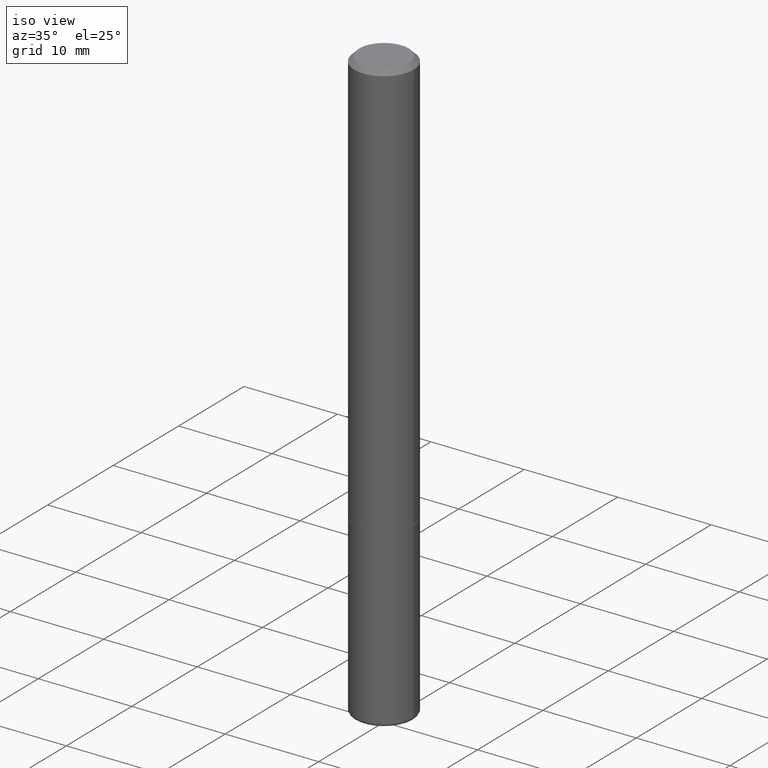
[diagram: clean part render]
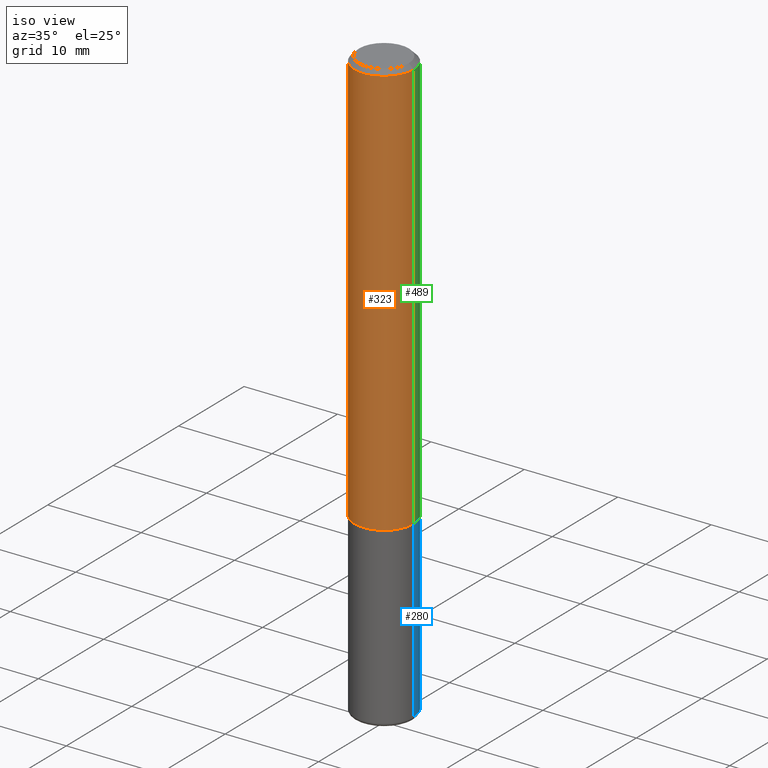
[diagram: same view with three faces highlighted in distinct colors, each labeled with its STEP entity id]
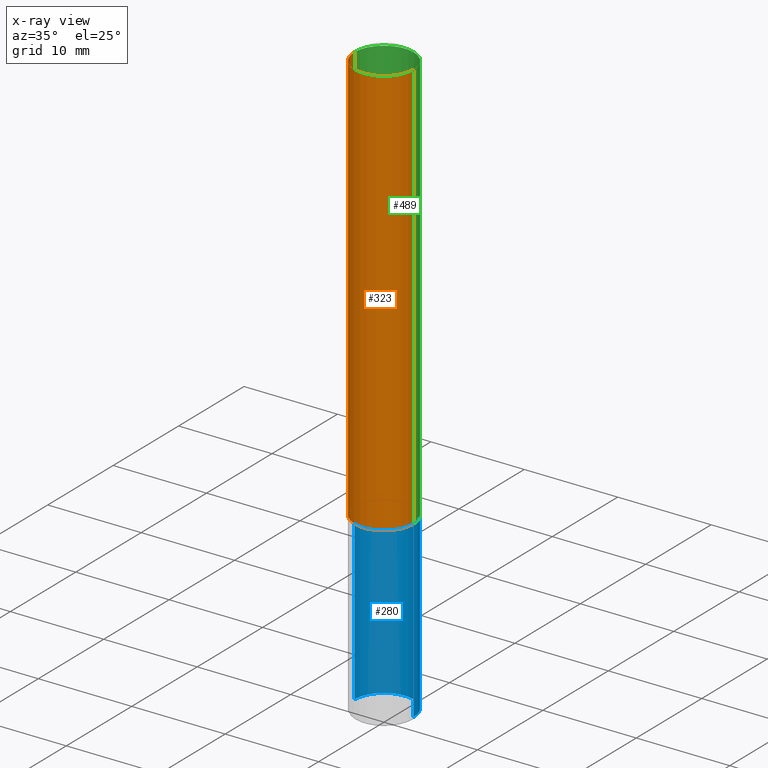
[diagram: x-ray of the same camera — body ghosted, the three highlighted faces saturated]
A machine part, iso view with three faces highlighted in distinct colors.
The next image is the same camera in x-ray (body ghosted, the three faces saturated) — at least one of them is partly hidden behind the body in this view.
Their STEP definitions:

[orange] entity #323 — the highlighted cylindrical surface (edge-blend (fillet) strip) has radius 3.175 mm, axis along (-0, 0, 1).
#10 = EDGE_CURVE ( 'NONE', #449, #472, #115, .T. ) ;
#23 = DIRECTION ( 'NONE',  ( -2.445468806185136597E-29, 3.491481338843145583E-15, 1.000000000000000000 ) ) ;
#29 = CARTESIAN_POINT ( 'NONE',  ( 0.1249999999999996947, -8.728703347107811695E-16, 6.095220969744905027E-30 ) ) ;
#31 = ORIENTED_EDGE ( 'NONE', *, *, #335, .F. ) ;
#39 = VERTEX_POINT ( 'NONE', #212 ) ;
#58 = CIRCLE ( 'NONE', #448, 0.1250000000000000278 ) ;
#72 = DIRECTION ( 'NONE',  ( 1.000000000000000000, -6.982962677686265922E-15, 0.000000000000000000 ) ) ;
#88 = CARTESIAN_POINT ( 'NONE',  ( 0.1249999999999993477, -9.273918764983002075E-16, -0.02000000000000009062 ) ) ;
#113 = CARTESIAN_POINT ( 'NONE',  ( 4.277124942017804562E-29, -6.106600861636661664E-15, -1.749000000000000110 ) ) ;
#114 = CARTESIAN_POINT ( 'NONE',  ( -0.1249999999999996947, 8.881784197001230630E-16, -6.148668862818616813E-30 ) ) ;
#115 = CIRCLE ( 'NONE', #125, 0.1249999999999993477 ) ;
#125 = AXIS2_PLACEMENT_3D ( 'NONE', #259, #23, #72 ) ;
#183 = VERTEX_POINT ( 'NONE', #380 ) ;
#204 = VECTOR ( 'NONE', #447, 39.37007874015748143 ) ;
#212 = CARTESIAN_POINT ( 'NONE',  ( 0.1250000000000000278, -6.979471196347445792E-15, -1.749000000000000110 ) ) ;
#225 = DIRECTION ( 'NONE',  ( 1.000000000000000000, -6.982962677686266711E-15, 4.876176775795935793E-29 ) ) ;
#243 = EDGE_CURVE ( 'NONE', #39, #472, #490, .T. ) ;
#259 = CARTESIAN_POINT ( 'NONE',  ( 4.890937612370295054E-31, -6.982962677686322424E-17, -0.02000000000000009062 ) ) ;
#261 = CYLINDRICAL_SURFACE ( 'NONE', #344, 0.1249999999999996947 ) ;
#271 = DIRECTION ( 'NONE',  ( 1.000000000000000000, -6.982962677686269077E-15, 0.000000000000000000 ) ) ;
#292 = LINE ( 'NONE', #114, #204 ) ;
#299 = CARTESIAN_POINT ( 'NONE',  ( 0.000000000000000000, 0.000000000000000000, 0.000000000000000000 ) ) ;
#303 = DIRECTION ( 'NONE',  ( -2.445468806185136597E-29, 3.491481338843145583E-15, 1.000000000000000000 ) ) ;
#313 = ORIENTED_EDGE ( 'NONE', *, *, #320, .T. ) ;
#320 = EDGE_CURVE ( 'NONE', #183, #39, #58, .T. ) ;
#323 = ADVANCED_FACE ( 'NONE', ( #451 ), #261, .T. ) ;
#335 = EDGE_CURVE ( 'NONE', #183, #449, #292, .T. ) ;
#336 = CARTESIAN_POINT ( 'NONE',  ( -0.1249999999999993477, 8.030407079339155047E-16, -0.02000000000000009062 ) ) ;
#344 = AXIS2_PLACEMENT_3D ( 'NONE', #299, #445, #225 ) ;
#349 = EDGE_LOOP ( 'NONE', ( #31, #313, #441, #375 ) ) ;
#355 = DIRECTION ( 'NONE',  ( -2.445468806185136877E-29, 3.491481338843145188E-15, 1.000000000000000000 ) ) ;
#375 = ORIENTED_EDGE ( 'NONE', *, *, #10, .F. ) ;
#380 = CARTESIAN_POINT ( 'NONE',  ( -0.1250000000000000278, -2.200036824506628966E-15, -1.749000000000000110 ) ) ;
#430 = VECTOR ( 'NONE', #355, 39.37007874015748143 ) ;
#441 = ORIENTED_EDGE ( 'NONE', *, *, #243, .T. ) ;
#445 = DIRECTION ( 'NONE',  ( -2.445468806185136597E-29, 3.491481338843145583E-15, 1.000000000000000000 ) ) ;
#447 = DIRECTION ( 'NONE',  ( -2.445468806185136877E-29, 3.491481338843145188E-15, 1.000000000000000000 ) ) ;
#448 = AXIS2_PLACEMENT_3D ( 'NONE', #113, #303, #271 ) ;
#449 = VERTEX_POINT ( 'NONE', #336 ) ;
#451 = FACE_OUTER_BOUND ( 'NONE', #349, .T. ) ;
#472 = VERTEX_POINT ( 'NONE', #88 ) ;
#490 = LINE ( 'NONE', #29, #430 ) ;

[blue] entity #280 — the highlighted cylindrical surface (edge-blend (fillet) strip) has radius 3.175 mm, axis along (-0, 0, 1).
#9 = DIRECTION ( 'NONE',  ( -2.445468806185136597E-29, 3.491481338843145583E-15, 1.000000000000000000 ) ) ;
#17 = ORIENTED_EDGE ( 'NONE', *, *, #77, .F. ) ;
#28 = EDGE_CURVE ( 'NONE', #362, #473, #394, .T. ) ;
#30 = DIRECTION ( 'NONE',  ( 1.000000000000000000, -6.982962677686269077E-15, 0.000000000000000000 ) ) ;
#63 = EDGE_CURVE ( 'NONE', #473, #440, #180, .T. ) ;
#77 = EDGE_CURVE ( 'NONE', #420, #440, #134, .T. ) ;
#83 = EDGE_CURVE ( 'NONE', #362, #420, #471, .T. ) ;
#101 = AXIS2_PLACEMENT_3D ( 'NONE', #480, #297, #154 ) ;
#108 = CARTESIAN_POINT ( 'NONE',  ( 6.076991380109446545E-29, -8.676333121198880578E-15, -2.485000571154037718 ) ) ;
#129 = CARTESIAN_POINT ( 'NONE',  ( 0.1250000000000000278, -6.982962677686288799E-15, -1.750000000000000222 ) ) ;
#134 = CIRCLE ( 'NONE', #287, 0.1250000000000000278 ) ;
#150 = ORIENTED_EDGE ( 'NONE', *, *, #28, .T. ) ;
#154 = DIRECTION ( 'NONE',  ( 1.000000000000000000, -6.982962677686267499E-15, 4.876176775795935793E-29 ) ) ;
#168 = ORIENTED_EDGE ( 'NONE', *, *, #83, .F. ) ;
#174 = CARTESIAN_POINT ( 'NONE',  ( 0.1250000000000000278, -8.728703347107836346E-16, 6.095220969744921142E-30 ) ) ;
#180 = LINE ( 'NONE', #391, #265 ) ;
#194 = CYLINDRICAL_SURFACE ( 'NONE', #101, 0.1250000000000000278 ) ;
#211 = DIRECTION ( 'NONE',  ( 1.000000000000000000, -6.982962677686269077E-15, 0.000000000000000000 ) ) ;
#216 = DIRECTION ( 'NONE',  ( -2.445468806185136877E-29, 3.491481338843145188E-15, 1.000000000000000000 ) ) ;
#265 = VECTOR ( 'NONE', #216, 39.37007874015748143 ) ;
#280 = ADVANCED_FACE ( 'NONE', ( #363 ), #194, .T. ) ;
#287 = AXIS2_PLACEMENT_3D ( 'NONE', #427, #9, #211 ) ;
#297 = DIRECTION ( 'NONE',  ( -2.445468806185136597E-29, 3.491481338843145583E-15, 1.000000000000000000 ) ) ;
#307 = VECTOR ( 'NONE', #463, 39.37007874015748143 ) ;
#340 = CARTESIAN_POINT ( 'NONE',  ( -0.1250000000000000278, -6.505034312387068576E-15, -2.485000571154037718 ) ) ;
#356 = DIRECTION ( 'NONE',  ( -2.445468806185136597E-29, 3.491481338843145583E-15, 1.000000000000000000 ) ) ;
#362 = VERTEX_POINT ( 'NONE', #407 ) ;
#363 = FACE_OUTER_BOUND ( 'NONE', #446, .T. ) ;
#391 = CARTESIAN_POINT ( 'NONE',  ( -0.1250000000000000278, 8.881784197001254296E-16, -6.148668862818634329E-30 ) ) ;
#394 = CIRCLE ( 'NONE', #404, 0.1250000000000000278 ) ;
#397 = ORIENTED_EDGE ( 'NONE', *, *, #63, .T. ) ;
#404 = AXIS2_PLACEMENT_3D ( 'NONE', #108, #356, #30 ) ;
#407 = CARTESIAN_POINT ( 'NONE',  ( 0.1250000000000000278, -9.549203455909665495E-15, -2.485000571154037718 ) ) ;
#420 = VERTEX_POINT ( 'NONE', #129 ) ;
#427 = CARTESIAN_POINT ( 'NONE',  ( 4.279570410823989044E-29, -6.110092342975505460E-15, -1.750000000000000222 ) ) ;
#440 = VERTEX_POINT ( 'NONE', #459 ) ;
#446 = EDGE_LOOP ( 'NONE', ( #150, #397, #17, #168 ) ) ;
#459 = CARTESIAN_POINT ( 'NONE',  ( -0.1250000000000000278, -6.505034312387068576E-15, -1.750000000000000222 ) ) ;
#463 = DIRECTION ( 'NONE',  ( -2.445468806185136877E-29, 3.491481338843145188E-15, 1.000000000000000000 ) ) ;
#471 = LINE ( 'NONE', #174, #307 ) ;
#473 = VERTEX_POINT ( 'NONE', #340 ) ;
#480 = CARTESIAN_POINT ( 'NONE',  ( 0.000000000000000000, 0.000000000000000000, 0.000000000000000000 ) ) ;

[green] entity #489 — the highlighted cylindrical surface (edge-blend (fillet) strip) has radius 3.175 mm, axis along (-0, 0, 1).
#4 = CARTESIAN_POINT ( 'NONE',  ( 0.000000000000000000, 0.000000000000000000, 0.000000000000000000 ) ) ;
#29 = CARTESIAN_POINT ( 'NONE',  ( 0.1249999999999996947, -8.728703347107811695E-16, 6.095220969744905027E-30 ) ) ;
#39 = VERTEX_POINT ( 'NONE', #212 ) ;
#47 = DIRECTION ( 'NONE',  ( -2.445468806185136597E-29, 3.491481338843145583E-15, 1.000000000000000000 ) ) ;
#48 = ORIENTED_EDGE ( 'NONE', *, *, #335, .T. ) ;
#51 = AXIS2_PLACEMENT_3D ( 'NONE', #74, #195, #196 ) ;
#52 = CYLINDRICAL_SURFACE ( 'NONE', #117, 0.1249999999999996947 ) ;
#74 = CARTESIAN_POINT ( 'NONE',  ( 4.890937612370295054E-31, -6.982962677686322424E-17, -0.02000000000000009062 ) ) ;
#82 = AXIS2_PLACEMENT_3D ( 'NONE', #442, #159, #300 ) ;
#88 = CARTESIAN_POINT ( 'NONE',  ( 0.1249999999999993477, -9.273918764983002075E-16, -0.02000000000000009062 ) ) ;
#114 = CARTESIAN_POINT ( 'NONE',  ( -0.1249999999999996947, 8.881784197001230630E-16, -6.148668862818616813E-30 ) ) ;
#117 = AXIS2_PLACEMENT_3D ( 'NONE', #4, #47, #205 ) ;
#158 = ORIENTED_EDGE ( 'NONE', *, *, #316, .T. ) ;
#159 = DIRECTION ( 'NONE',  ( -2.445468806185136597E-29, 3.491481338843145583E-15, 1.000000000000000000 ) ) ;
#162 = EDGE_LOOP ( 'NONE', ( #158, #48, #250, #350 ) ) ;
#183 = VERTEX_POINT ( 'NONE', #380 ) ;
#195 = DIRECTION ( 'NONE',  ( -2.445468806185136597E-29, 3.491481338843145583E-15, 1.000000000000000000 ) ) ;
#196 = DIRECTION ( 'NONE',  ( 1.000000000000000000, -6.982962677686265922E-15, 0.000000000000000000 ) ) ;
#204 = VECTOR ( 'NONE', #447, 39.37007874015748143 ) ;
#205 = DIRECTION ( 'NONE',  ( 1.000000000000000000, -6.982962677686266711E-15, 4.876176775795935793E-29 ) ) ;
#212 = CARTESIAN_POINT ( 'NONE',  ( 0.1250000000000000278, -6.979471196347445792E-15, -1.749000000000000110 ) ) ;
#240 = FACE_OUTER_BOUND ( 'NONE', #162, .T. ) ;
#243 = EDGE_CURVE ( 'NONE', #39, #472, #490, .T. ) ;
#250 = ORIENTED_EDGE ( 'NONE', *, *, #293, .F. ) ;
#292 = LINE ( 'NONE', #114, #204 ) ;
#293 = EDGE_CURVE ( 'NONE', #472, #449, #465, .T. ) ;
#300 = DIRECTION ( 'NONE',  ( 1.000000000000000000, -6.982962677686269077E-15, 0.000000000000000000 ) ) ;
#316 = EDGE_CURVE ( 'NONE', #39, #183, #338, .T. ) ;
#335 = EDGE_CURVE ( 'NONE', #183, #449, #292, .T. ) ;
#336 = CARTESIAN_POINT ( 'NONE',  ( -0.1249999999999993477, 8.030407079339155047E-16, -0.02000000000000009062 ) ) ;
#338 = CIRCLE ( 'NONE', #82, 0.1250000000000000278 ) ;
#350 = ORIENTED_EDGE ( 'NONE', *, *, #243, .F. ) ;
#355 = DIRECTION ( 'NONE',  ( -2.445468806185136877E-29, 3.491481338843145188E-15, 1.000000000000000000 ) ) ;
#380 = CARTESIAN_POINT ( 'NONE',  ( -0.1250000000000000278, -2.200036824506628966E-15, -1.749000000000000110 ) ) ;
#430 = VECTOR ( 'NONE', #355, 39.37007874015748143 ) ;
#442 = CARTESIAN_POINT ( 'NONE',  ( 4.277124942017804562E-29, -6.106600861636661664E-15, -1.749000000000000110 ) ) ;
#447 = DIRECTION ( 'NONE',  ( -2.445468806185136877E-29, 3.491481338843145188E-15, 1.000000000000000000 ) ) ;
#449 = VERTEX_POINT ( 'NONE', #336 ) ;
#465 = CIRCLE ( 'NONE', #51, 0.1249999999999993477 ) ;
#472 = VERTEX_POINT ( 'NONE', #88 ) ;
#489 = ADVANCED_FACE ( 'NONE', ( #240 ), #52, .T. ) ;
#490 = LINE ( 'NONE', #29, #430 ) ;